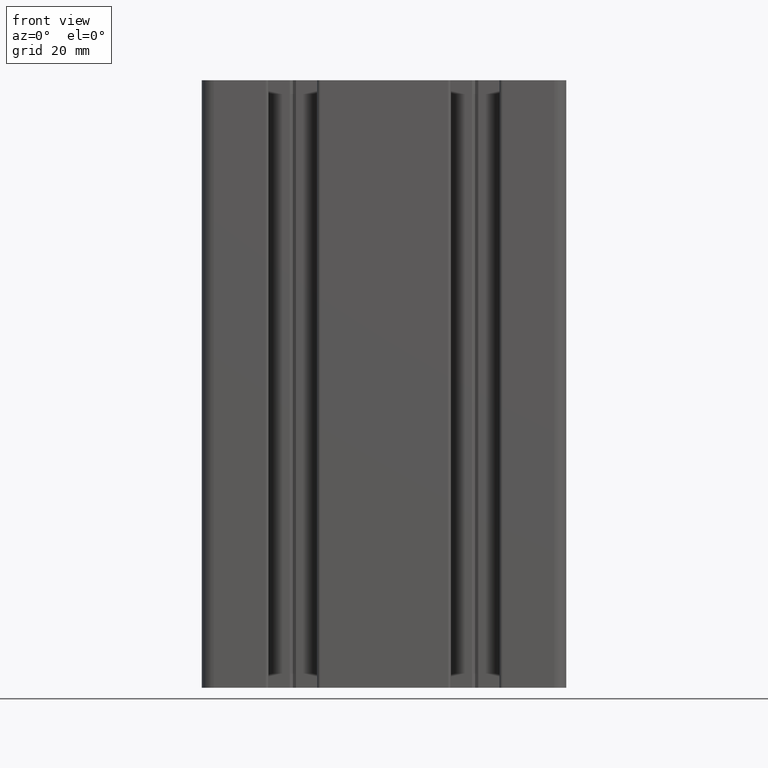
[diagram: clean part render]
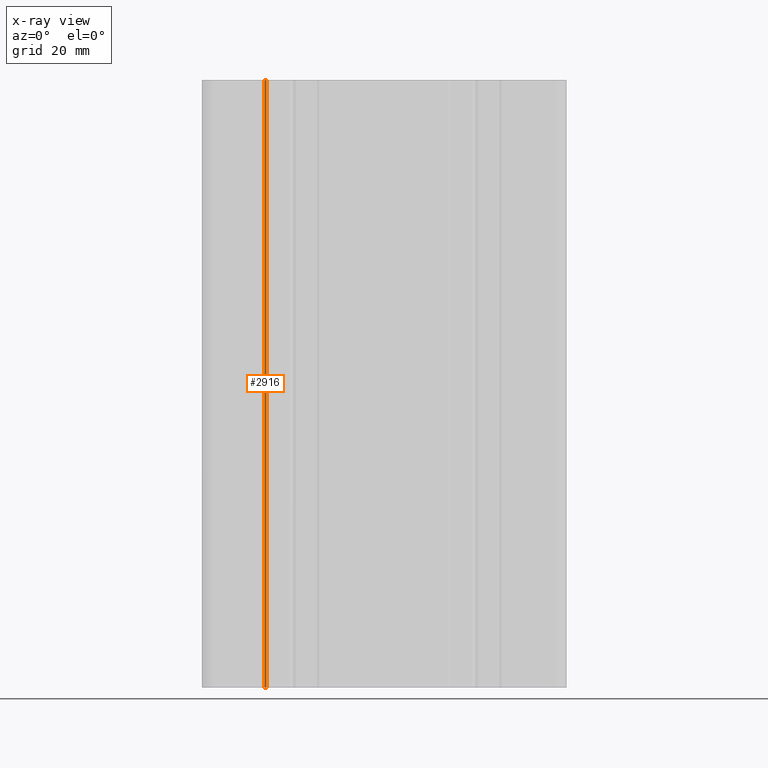
[diagram: x-ray — body ghosted, one internal face saturated and labeled with its STEP entity id]
A machine part, front view, then the same camera in x-ray: the body is ghosted and one INTERNAL B-rep face — a face not visible from any outside direction — is saturated and labeled: STEP entity #2916.
In plain terms, the highlighted cylindrical surface (edge-blend (fillet) strip) has radius 0.5 mm, axis along (0, 0, 1).
Its self-contained STEP definition (entity closure, byte-faithful):
#37=CIRCLE('',#3070,0.5);
#38=CIRCLE('',#3071,0.5);
#157=CYLINDRICAL_SURFACE('',#3069,0.5);
#218=FACE_OUTER_BOUND('',#369,.T.);
#369=EDGE_LOOP('',(#1938,#1939,#1940,#1941));
#544=LINE('',#4217,#869);
#545=LINE('',#4223,#870);
#869=VECTOR('',#3346,100.);
#870=VECTOR('',#3353,100.);
#1192=VERTEX_POINT('',#4211);
#1194=VERTEX_POINT('',#4215);
#1195=VERTEX_POINT('',#4219);
#1196=VERTEX_POINT('',#4221);
#1492=EDGE_CURVE('',#1194,#1192,#544,.T.);
#1493=EDGE_CURVE('',#1192,#1195,#37,.T.);
#1494=EDGE_CURVE('',#1196,#1194,#38,.T.);
#1495=EDGE_CURVE('',#1196,#1195,#545,.T.);
#1938=ORIENTED_EDGE('',*,*,#1493,.F.);
#1939=ORIENTED_EDGE('',*,*,#1492,.F.);
#1940=ORIENTED_EDGE('',*,*,#1494,.F.);
#1941=ORIENTED_EDGE('',*,*,#1495,.T.);
#2916=ADVANCED_FACE('',(#218),#157,.F.);
#3069=AXIS2_PLACEMENT_3D('',#4218,#3347,#3348);
#3070=AXIS2_PLACEMENT_3D('',#4220,#3349,#3350);
#3071=AXIS2_PLACEMENT_3D('',#4222,#3351,#3352);
#3346=DIRECTION('',(0.,0.,1.));
#3347=DIRECTION('center_axis',(0.,0.,1.));
#3348=DIRECTION('ref_axis',(-0.707106780296606,-0.707106782076489,0.));
#3349=DIRECTION('center_axis',(0.,0.,-1.));
#3350=DIRECTION('ref_axis',(-0.707106780296606,-0.707106782076489,0.));
#3351=DIRECTION('center_axis',(0.,0.,1.));
#3352=DIRECTION('ref_axis',(-0.707106780296606,-0.707106782076489,0.));
#3353=DIRECTION('',(0.,0.,1.));
#4211=CARTESIAN_POINT('',(-19.3201000041419,5.79999871239996,100.));
#4215=CARTESIAN_POINT('',(-19.3201000041419,5.79999871239996,0.));
#4217=CARTESIAN_POINT('',(-19.3201000041419,5.79999871239996,0.));
#4218=CARTESIAN_POINT('Origin',(-19.3201000041419,6.29999871239996,0.));
#4219=CARTESIAN_POINT('',(-19.6736533942902,5.94644532136171,100.));
#4220=CARTESIAN_POINT('Origin',(-19.3201000041419,6.29999871239996,100.));
#4221=CARTESIAN_POINT('',(-19.6736533942902,5.94644532136171,0.));
#4222=CARTESIAN_POINT('Origin',(-19.3201000041419,6.29999871239996,0.));
#4223=CARTESIAN_POINT('',(-19.6736533942902,5.94644532136171,0.));